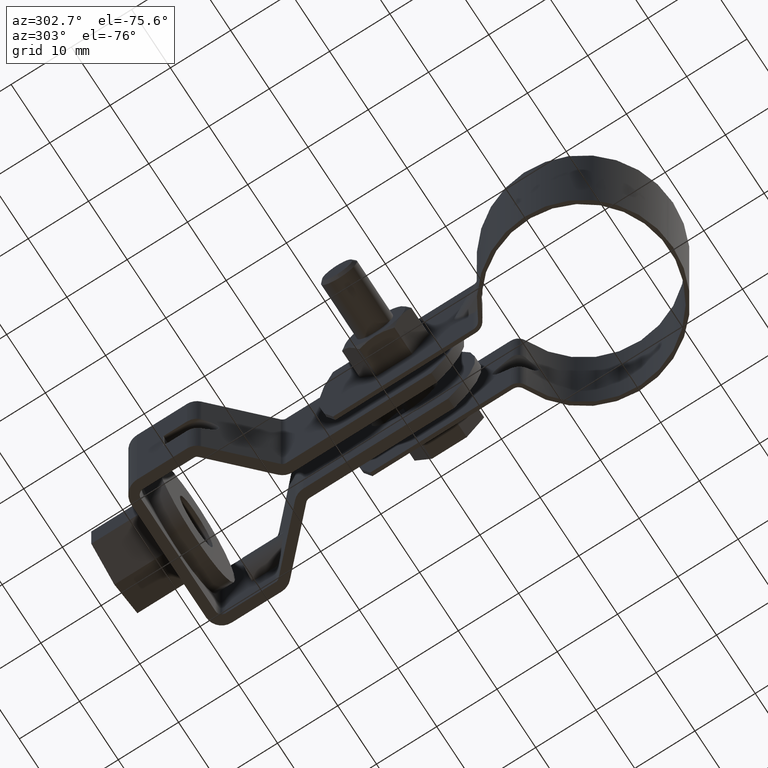
[diagram: clean part render]
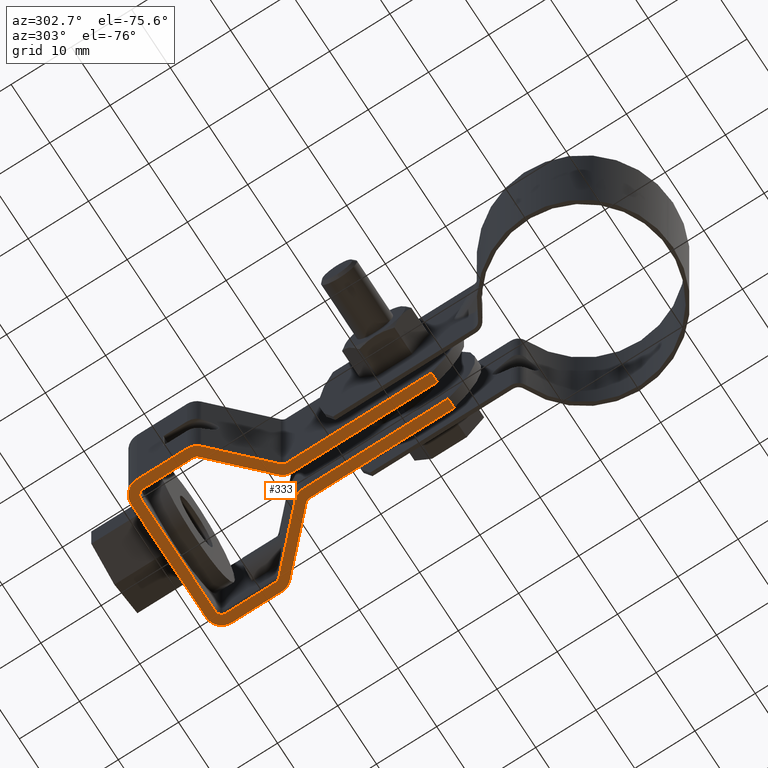
[diagram: same view with one face highlighted and labeled with its STEP entity id]
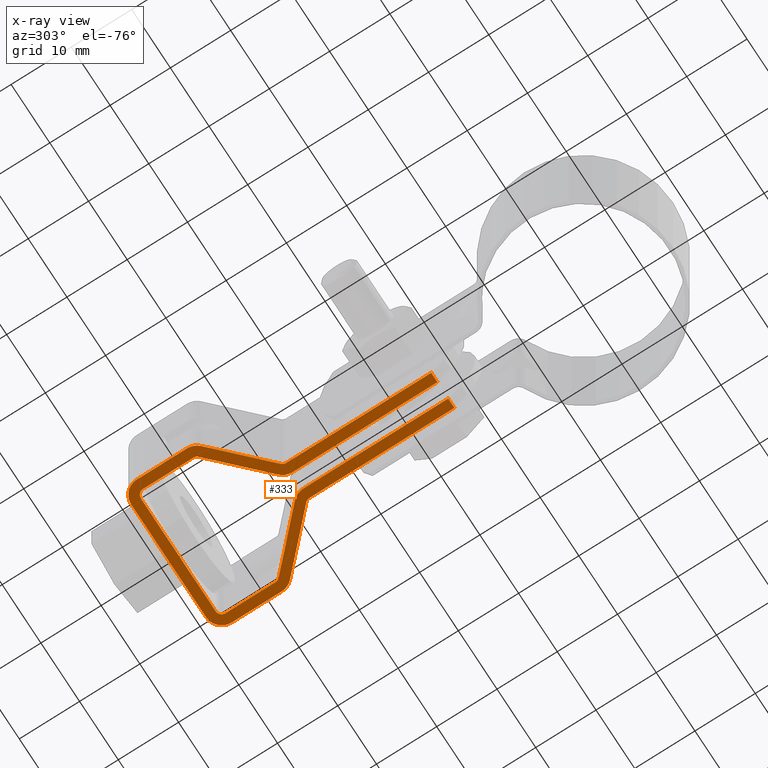
[diagram: x-ray of the same camera — body ghosted, the highlighted face saturated]
A machine part, auxiliary view. The second image highlights one B-rep face of the part: STEP entity #333.
The next image is the same camera in x-ray: the body ghosted, the highlighted face saturated — about 0% of this face is hidden behind the body in this view.
In plain terms, the highlighted planar face has unit normal (0, -0, 1).
Its self-contained STEP definition (entity closure, byte-faithful):
#333 = ADVANCED_FACE( '', ( #536 ), #537, .F. );
#536 = FACE_OUTER_BOUND( '', #808, .T. );
#537 = PLANE( '', #809 );
#808 = EDGE_LOOP( '', ( #1454, #1455, #1456, #1457, #1458, #1459, #1460, #1461, #1462, #1463, #1464, #1465, #1466, #1467, #1468, #1469, #1470, #1471, #1472, #1473, #1474, #1475, #1476, #1477, #1478, #1479, #1480, #1481 ) );
#809 = AXIS2_PLACEMENT_3D( '', #1482, #1483, #1484 );
#1454 = ORIENTED_EDGE( '', *, *, #2095, .T. );
#1455 = ORIENTED_EDGE( '', *, *, #2096, .T. );
#1456 = ORIENTED_EDGE( '', *, *, #2097, .F. );
#1457 = ORIENTED_EDGE( '', *, *, #2098, .F. );
#1458 = ORIENTED_EDGE( '', *, *, #2099, .F. );
#1459 = ORIENTED_EDGE( '', *, *, #2100, .F. );
#1460 = ORIENTED_EDGE( '', *, *, #2101, .F. );
#1461 = ORIENTED_EDGE( '', *, *, #2102, .T. );
#1462 = ORIENTED_EDGE( '', *, *, #2103, .T. );
#1463 = ORIENTED_EDGE( '', *, *, #2104, .T. );
#1464 = ORIENTED_EDGE( '', *, *, #2105, .T. );
#1465 = ORIENTED_EDGE( '', *, *, #2106, .F. );
#1466 = ORIENTED_EDGE( '', *, *, #2107, .F. );
#1467 = ORIENTED_EDGE( '', *, *, #2108, .T. );
#1468 = ORIENTED_EDGE( '', *, *, #2109, .F. );
#1469 = ORIENTED_EDGE( '', *, *, #2110, .F. );
#1470 = ORIENTED_EDGE( '', *, *, #2111, .T. );
#1471 = ORIENTED_EDGE( '', *, *, #2112, .T. );
#1472 = ORIENTED_EDGE( '', *, *, #2113, .T. );
#1473 = ORIENTED_EDGE( '', *, *, #2114, .T. );
#1474 = ORIENTED_EDGE( '', *, *, #2115, .F. );
#1475 = ORIENTED_EDGE( '', *, *, #2116, .F. );
#1476 = ORIENTED_EDGE( '', *, *, #2117, .F. );
#1477 = ORIENTED_EDGE( '', *, *, #2118, .F. );
#1478 = ORIENTED_EDGE( '', *, *, #2119, .F. );
#1479 = ORIENTED_EDGE( '', *, *, #2120, .T. );
#1480 = ORIENTED_EDGE( '', *, *, #2121, .T. );
#1481 = ORIENTED_EDGE( '', *, *, #2122, .F. );
#1482 = CARTESIAN_POINT( '', ( 9.65000000345030, 66.2129671568643, -12.4999986181080 ) );
#1483 = DIRECTION( '', ( 1.87698704392248E-011, -9.98350074832307E-009, 1.00000000000000 ) );
#1484 = DIRECTION( '', ( 1.39877502405819E-011, 1.00000000000000, 9.98350074832280E-009 ) );
#2095 = EDGE_CURVE( '', #2521, #2522, #2523, .T. );
#2096 = EDGE_CURVE( '', #2522, #2524, #2525, .F. );
#2097 = EDGE_CURVE( '', #2526, #2524, #2527, .T. );
#2098 = EDGE_CURVE( '', #2528, #2526, #2529, .T. );
#2099 = EDGE_CURVE( '', #2530, #2528, #2531, .T. );
#2100 = EDGE_CURVE( '', #2532, #2530, #2533, .T. );
#2101 = EDGE_CURVE( '', #2534, #2532, #2535, .T. );
#2102 = EDGE_CURVE( '', #2534, #2536, #2537, .T. );
#2103 = EDGE_CURVE( '', #2536, #2538, #2539, .T. );
#2104 = EDGE_CURVE( '', #2538, #2540, #2541, .T. );
#2105 = EDGE_CURVE( '', #2540, #2542, #2543, .T. );
#2106 = EDGE_CURVE( '', #2544, #2542, #2545, .F. );
#2107 = EDGE_CURVE( '', #2546, #2544, #2547, .T. );
#2108 = EDGE_CURVE( '', #2546, #2548, #2549, .F. );
#2109 = EDGE_CURVE( '', #2550, #2548, #2551, .T. );
#2110 = EDGE_CURVE( '', #2552, #2550, #2553, .T. );
#2111 = EDGE_CURVE( '', #2552, #2554, #2555, .T. );
#2112 = EDGE_CURVE( '', #2554, #2556, #2557, .T. );
#2113 = EDGE_CURVE( '', #2556, #2558, #2559, .T. );
#2114 = EDGE_CURVE( '', #2558, #2560, #2561, .T. );
#2115 = EDGE_CURVE( '', #2562, #2560, #2563, .T. );
#2116 = EDGE_CURVE( '', #2564, #2562, #2565, .T. );
#2117 = EDGE_CURVE( '', #2566, #2564, #2567, .T. );
#2118 = EDGE_CURVE( '', #2568, #2566, #2569, .T. );
#2119 = EDGE_CURVE( '', #2570, #2568, #2571, .T. );
#2120 = EDGE_CURVE( '', #2570, #2572, #2573, .T. );
#2121 = EDGE_CURVE( '', #2572, #2574, #2575, .T. );
#2122 = EDGE_CURVE( '', #2521, #2574, #2576, .F. );
#2521 = VERTEX_POINT( '', #3263 );
#2522 = VERTEX_POINT( '', #3264 );
#2523 = LINE( '', #3265, #3266 );
#2524 = VERTEX_POINT( '', #3267 );
#2525 = CIRCLE( '', #3268, 2.60000000000000 );
#2526 = VERTEX_POINT( '', #3269 );
#2527 = LINE( '', #3270, #3271 );
#2528 = VERTEX_POINT( '', #3272 );
#2529 = CIRCLE( '', #3273, 1.00000000000000 );
#2530 = VERTEX_POINT( '', #3274 );
#2531 = LINE( '', #3275, #3276 );
#2532 = VERTEX_POINT( '', #3277 );
#2533 = CIRCLE( '', #3278, 1.00000000000000 );
#2534 = VERTEX_POINT( '', #3279 );
#2535 = LINE( '', #3280, #3281 );
#2536 = VERTEX_POINT( '', #3282 );
#2537 = CIRCLE( '', #3283, 1.00000000000000 );
#2538 = VERTEX_POINT( '', #3284 );
#2539 = LINE( '', #3285, #3286 );
#2540 = VERTEX_POINT( '', #3287 );
#2541 = CIRCLE( '', #3288, 0.999999999999999 );
#2542 = VERTEX_POINT( '', #3289 );
#2543 = LINE( '', #3290, #3291 );
#2544 = VERTEX_POINT( '', #3292 );
#2545 = CIRCLE( '', #3293, 2.59999999999999 );
#2546 = VERTEX_POINT( '', #3294 );
#2547 = LINE( '', #3295, #3296 );
#2548 = VERTEX_POINT( '', #3297 );
#2549 = LINE( '', #3298, #3299 );
#2550 = VERTEX_POINT( '', #3300 );
#2551 = LINE( '', #3301, #3302 );
#2552 = VERTEX_POINT( '', #3303 );
#2553 = CIRCLE( '', #3304, 0.999999999999998 );
#2554 = VERTEX_POINT( '', #3305 );
#2555 = LINE( '', #3306, #3307 );
#2556 = VERTEX_POINT( '', #3308 );
#2557 = CIRCLE( '', #3309, 2.59999999999999 );
#2558 = VERTEX_POINT( '', #3310 );
#2559 = LINE( '', #3311, #3312 );
#2560 = VERTEX_POINT( '', #3313 );
#2561 = CIRCLE( '', #3314, 2.59999999999999 );
#2562 = VERTEX_POINT( '', #3315 );
#2563 = LINE( '', #3316, #3317 );
#2564 = VERTEX_POINT( '', #3318 );
#2565 = CIRCLE( '', #3319, 2.59999999999999 );
#2566 = VERTEX_POINT( '', #3320 );
#2567 = LINE( '', #3321, #3322 );
#2568 = VERTEX_POINT( '', #3323 );
#2569 = CIRCLE( '', #3324, 2.59999999999999 );
#2570 = VERTEX_POINT( '', #3325 );
#2571 = LINE( '', #3326, #3327 );
#2572 = VERTEX_POINT( '', #3328 );
#2573 = CIRCLE( '', #3329, 1.00000000000000 );
#2574 = VERTEX_POINT( '', #3330 );
#2575 = LINE( '', #3331, #3332 );
#2576 = LINE( '', #3333, #3334 );
#3263 = CARTESIAN_POINT( '', ( 1.40000000285022, 23.3129671900679, -12.4999990462453 ) );
#3264 = CARTESIAN_POINT( '', ( 1.40000000318669, 47.3671135312759, -12.4999988061007 ) );
#3265 = CARTESIAN_POINT( '', ( 1.40000000278728, 18.8129671569799, -12.4999990911711 ) );
#3266 = VECTOR( '', #3950, 1000.00000000000 );
#3267 = CARTESIAN_POINT( '', ( 2.18435803083342, 49.2281466390131, -12.4999987875358 ) );
#3268 = AXIS2_PLACEMENT_3D( '', #3951, #3952, #3953 );
#3269 = CARTESIAN_POINT( '', ( 10.3483238388546, 57.1929909612261, -12.4999987081720 ) );
#3270 = CARTESIAN_POINT( '', ( 10.3483238388546, 57.1929909612261, -12.4999987081720 ) );
#3271 = VECTOR( '', #3954, 1000.00000000000 );
#3272 = CARTESIAN_POINT( '', ( 10.6500000033341, 57.9087729257404, -12.4999987010317 ) );
#3273 = AXIS2_PLACEMENT_3D( '', #3955, #3956, #3957 );
#3274 = CARTESIAN_POINT( '', ( 10.6500000034503, 66.2129671568503, -12.4999986181268 ) );
#3275 = CARTESIAN_POINT( '', ( 10.6500000034503, 66.2129671568503, -12.4999986181268 ) );
#3276 = VECTOR( '', #3958, 1000.00000000000 );
#3277 = CARTESIAN_POINT( '', ( 9.65000000346429, 67.2129671568643, -12.4999986081245 ) );
#3278 = AXIS2_PLACEMENT_3D( '', #3959, #3960, #3961 );
#3279 = CARTESIAN_POINT( '', ( -9.64999999653570, 67.2129671571346, -12.4999986077623 ) );
#3280 = CARTESIAN_POINT( '', ( -9.64999999653572, 67.2129671571343, -12.4999986077622 ) );
#3281 = VECTOR( '', #3962, 1000.00000000000 );
#3282 = CARTESIAN_POINT( '', ( -10.6499999965497, 66.2129671571486, -12.4999986177270 ) );
#3283 = AXIS2_PLACEMENT_3D( '', #3963, #3964, #3965 );
#3284 = CARTESIAN_POINT( '', ( -10.6499999966658, 57.9087729260386, -12.4999987006319 ) );
#3285 = CARTESIAN_POINT( '', ( -10.6499999965497, 66.2129671571486, -12.4999986177270 ) );
#3286 = VECTOR( '', #3966, 1000.00000000000 );
#3287 = CARTESIAN_POINT( '', ( -10.3483238322064, 57.1929909615159, -12.4999987077836 ) );
#3288 = AXIS2_PLACEMENT_3D( '', #3967, #3968, #3969 );
#3289 = CARTESIAN_POINT( '', ( -2.18435802440798, 49.2281466390745, -12.4999987874539 ) );
#3290 = CARTESIAN_POINT( '', ( -10.3483238322064, 57.1929909615159, -12.4999987077836 ) );
#3291 = VECTOR( '', #3970, 1000.00000000000 );
#3292 = CARTESIAN_POINT( '', ( -1.39999999681331, 47.3671135313154, -12.4999988060482 ) );
#3293 = AXIS2_PLACEMENT_3D( '', #3971, #3972, #3973 );
#3294 = CARTESIAN_POINT( '', ( -1.39999999714977, 23.3129671901073, -12.4999990461928 ) );
#3295 = CARTESIAN_POINT( '', ( -1.39999999721272, 18.8129671570193, -12.4999990911185 ) );
#3296 = VECTOR( '', #3974, 1000.00000000000 );
#3297 = CARTESIAN_POINT( '', ( -2.99999999714979, 23.3129671950212, -12.4999990520761 ) );
#3298 = CARTESIAN_POINT( '', ( -38.4737108537456, 23.3129671906259, -12.4999990454969 ) );
#3299 = VECTOR( '', #3975, 999.999999999998 );
#3300 = CARTESIAN_POINT( '', ( -2.99999999681330, 47.3671135615619, -12.4999988060182 ) );
#3301 = CARTESIAN_POINT( '', ( -2.99999999680741, 47.7885773304520, -12.4999988018105 ) );
#3302 = VECTOR( '', #3976, 1000.00000000000 );
#3303 = CARTESIAN_POINT( '', ( -3.30167616127279, 48.0828955260846, -12.4999987988665 ) );
#3304 = AXIS2_PLACEMENT_3D( '', #3977, #3978, #3979 );
#3305 = CARTESIAN_POINT( '', ( -11.4656419690712, 56.0477398485260, -12.4999987191962 ) );
#3306 = CARTESIAN_POINT( '', ( -3.90167616126461, 48.6682613526826, -12.4999987930113 ) );
#3307 = VECTOR( '', #3980, 1000.00000000000 );
#3308 = CARTESIAN_POINT( '', ( -12.2499999966658, 57.9087729562851, -12.4999987006019 ) );
#3309 = AXIS2_PLACEMENT_3D( '', #3981, #3982, #3983 );
#3310 = CARTESIAN_POINT( '', ( -12.2499999965497, 66.2129671571710, -12.4999986176970 ) );
#3311 = CARTESIAN_POINT( '', ( -12.2499999966658, 57.9087729562851, -12.4999987006019 ) );
#3312 = VECTOR( '', #3984, 1000.00000000000 );
#3313 = CARTESIAN_POINT( '', ( -9.64999999651332, 68.8129671571346, -12.4999985917887 ) );
#3314 = AXIS2_PLACEMENT_3D( '', #3985, #3986, #3987 );
#3315 = CARTESIAN_POINT( '', ( 9.65000000348667, 68.8129671568643, -12.4999985921509 ) );
#3316 = CARTESIAN_POINT( '', ( 9.65000000348667, 68.8129671568643, -12.4999985921509 ) );
#3317 = VECTOR( '', #3988, 1000.00000000000 );
#3318 = CARTESIAN_POINT( '', ( 12.2500000034503, 66.2129671568279, -12.4999986181568 ) );
#3319 = AXIS2_PLACEMENT_3D( '', #3989, #3990, #3991 );
#3320 = CARTESIAN_POINT( '', ( 12.2500000033341, 57.9087729559421, -12.4999987010617 ) );
#3321 = CARTESIAN_POINT( '', ( 12.2500000033341, 57.9087729559421, -12.4999987010617 ) );
#3322 = VECTOR( '', #3992, 1000.00000000000 );
#3323 = CARTESIAN_POINT( '', ( 11.4656419756874, 56.0477398482050, -12.4999987196266 ) );
#3324 = AXIS2_PLACEMENT_3D( '', #3993, #3994, #3995 );
#3325 = CARTESIAN_POINT( '', ( 3.30167616766619, 48.0828955259919, -12.4999987989904 ) );
#3326 = CARTESIAN_POINT( '', ( 3.90167616767439, 48.6682613525731, -12.4999987931577 ) );
#3327 = VECTOR( '', #3996, 1000.00000000000 );
#3328 = CARTESIAN_POINT( '', ( 3.00000000318668, 47.3671135614776, -12.4999988061308 ) );
#3329 = AXIS2_PLACEMENT_3D( '', #3997, #3998, #3999 );
#3330 = CARTESIAN_POINT( '', ( 3.00000000285024, 23.3129671949370, -12.4999990521887 ) );
#3331 = CARTESIAN_POINT( '', ( 3.00000000319258, 47.7885773303677, -12.4999988019231 ) );
#3332 = VECTOR( '', #4000, 1000.00000000000 );
#3333 = CARTESIAN_POINT( '', ( 38.4737108594461, 23.3129671895493, -12.4999990469412 ) );
#3334 = VECTOR( '', #4001, 1000.00000000000 );
#3950 = DIRECTION( '', ( 1.39878612628844E-011, 1.00000000000000, 9.98350074832280E-009 ) );
#3951 = CARTESIAN_POINT( '', ( 4.00000000318668, 47.3671135312396, -12.4999988061495 ) );
#3952 = DIRECTION( '', ( 1.87698704392248E-011, -9.98350074832307E-009, 1.00000000000000 ) );
#3953 = DIRECTION( '', ( 1.00000000000000, -1.39877500531929E-011, -1.87698705788715E-011 ) );
#3954 = DIRECTION( '', ( -0.715781964528273, -0.698323835520488, -6.95828139975370E-009 ) );
#3955 = CARTESIAN_POINT( '', ( 9.65000000333414, 57.9087729257544, -12.4999987010129 ) );
#3956 = DIRECTION( '', ( -1.87698704392248E-011, 9.98350074832307E-009, -1.00000000000000 ) );
#3957 = DIRECTION( '', ( 1.00000000000000, -1.39877500531929E-011, -1.87698705788715E-011 ) );
#3958 = DIRECTION( '', ( -1.39877502405819E-011, -1.00000000000000, -9.98350074832280E-009 ) );
#3959 = CARTESIAN_POINT( '', ( 9.65000000345030, 66.2129671568643, -12.4999986181080 ) );
#3960 = DIRECTION( '', ( -1.87698704392248E-011, 9.98350074832307E-009, -1.00000000000000 ) );
#3961 = DIRECTION( '', ( 1.39877502405819E-011, 1.00000000000000, 9.98350074832280E-009 ) );
#3962 = DIRECTION( '', ( 1.00000000000000, -1.39877500531929E-011, -1.87698705788715E-011 ) );
#3963 = CARTESIAN_POINT( '', ( -9.64999999654969, 66.2129671571346, -12.4999986177458 ) );
#3964 = DIRECTION( '', ( 1.87698704392248E-011, -9.98350074832307E-009, 1.00000000000000 ) );
#3965 = DIRECTION( '', ( 1.39876277799465E-011, 1.00000000000000, 9.98350074832281E-009 ) );
#3966 = DIRECTION( '', ( -1.39876277799465E-011, -1.00000000000000, -9.98350074832280E-009 ) );
#3967 = CARTESIAN_POINT( '', ( -9.64999999666585, 57.9087729260246, -12.4999987006507 ) );
#3968 = DIRECTION( '', ( 1.87698704392248E-011, -9.98350074832307E-009, 1.00000000000000 ) );
#3969 = DIRECTION( '', ( -1.00000000000000, 1.39876275925575E-011, 1.87698705788703E-011 ) );
#3970 = DIRECTION( '', ( 0.715781964508736, -0.698323835540514, -6.98515166942712E-009 ) );
#3971 = CARTESIAN_POINT( '', ( -3.99999999681330, 47.3671135313518, -12.4999988059994 ) );
#3972 = DIRECTION( '', ( -1.87698704392248E-011, 9.98350074832307E-009, -1.00000000000000 ) );
#3973 = DIRECTION( '', ( -1.00000000000000, 1.39876275925575E-011, 1.87698705788703E-011 ) );
#3974 = DIRECTION( '', ( 1.39875167576440E-011, 1.00000000000000, 9.98350074832280E-009 ) );
#3975 = DIRECTION( '', ( 1.00000000000000, -1.39876275925575E-011, -1.87698705788703E-011 ) );
#3976 = DIRECTION( '', ( -1.39875167576440E-011, -1.00000000000000, -9.98350074832280E-009 ) );
#3977 = CARTESIAN_POINT( '', ( -3.99999999681330, 47.3671135615759, -12.4999988059994 ) );
#3978 = DIRECTION( '', ( -1.87698704392248E-011, 9.98350074832307E-009, -1.00000000000000 ) );
#3979 = DIRECTION( '', ( -1.00000000000000, 1.39876275925575E-011, 1.87698705788703E-011 ) );
#3980 = DIRECTION( '', ( -0.715781964508736, 0.698323835540514, 6.98515166942712E-009 ) );
#3981 = CARTESIAN_POINT( '', ( -9.64999999666585, 57.9087729562487, -12.4999987006507 ) );
#3982 = DIRECTION( '', ( -1.87698704392238E-011, 9.98350074832307E-009, -1.00000000000000 ) );
#3983 = DIRECTION( '', ( -0.698323835540512, -0.715781964508738, -7.13290233039142E-009 ) );
#3984 = DIRECTION( '', ( 1.39876277799465E-011, 1.00000000000000, 9.98350074832280E-009 ) );
#3985 = CARTESIAN_POINT( '', ( -9.64999999654969, 66.2129671571346, -12.4999986177458 ) );
#3986 = DIRECTION( '', ( -1.87698704392248E-011, 9.98350074832307E-009, -1.00000000000000 ) );
#3987 = DIRECTION( '', ( -1.00000000000000, 1.39876275925575E-011, 1.87698705788703E-011 ) );
#3988 = DIRECTION( '', ( -1.00000000000000, 1.39877500531929E-011, 1.87698705788715E-011 ) );
#3989 = CARTESIAN_POINT( '', ( 9.65000000345030, 66.2129671568643, -12.4999986181080 ) );
#3990 = DIRECTION( '', ( 1.87698704392248E-011, -9.98350074832307E-009, 1.00000000000000 ) );
#3991 = DIRECTION( '', ( 1.00000000000000, -1.39877500531929E-011, -1.87698705788715E-011 ) );
#3992 = DIRECTION( '', ( 1.39877502405819E-011, 1.00000000000000, 9.98350074832280E-009 ) );
#3993 = CARTESIAN_POINT( '', ( 9.65000000333414, 57.9087729559785, -12.4999987010129 ) );
#3994 = DIRECTION( '', ( 1.87698704392248E-011, -9.98350074832307E-009, 1.00000000000000 ) );
#3995 = DIRECTION( '', ( 0.698323835520490, -0.715781964528272, -7.15911722642150E-009 ) );
#3996 = DIRECTION( '', ( 0.715781964528273, 0.698323835520488, 6.95828139975370E-009 ) );
#3997 = CARTESIAN_POINT( '', ( 4.00000000318668, 47.3671135614637, -12.4999988061495 ) );
#3998 = DIRECTION( '', ( 1.87698704392248E-011, -9.98350074832307E-009, 1.00000000000000 ) );
#3999 = DIRECTION( '', ( 1.00000000000000, -1.39877500531929E-011, -1.87698705788715E-011 ) );
#4000 = DIRECTION( '', ( -1.39878612628844E-011, -1.00000000000000, -9.98350074832280E-009 ) );
#4001 = DIRECTION( '', ( -1.00000000000000, 1.39877500531929E-011, 1.87698705788715E-011 ) );